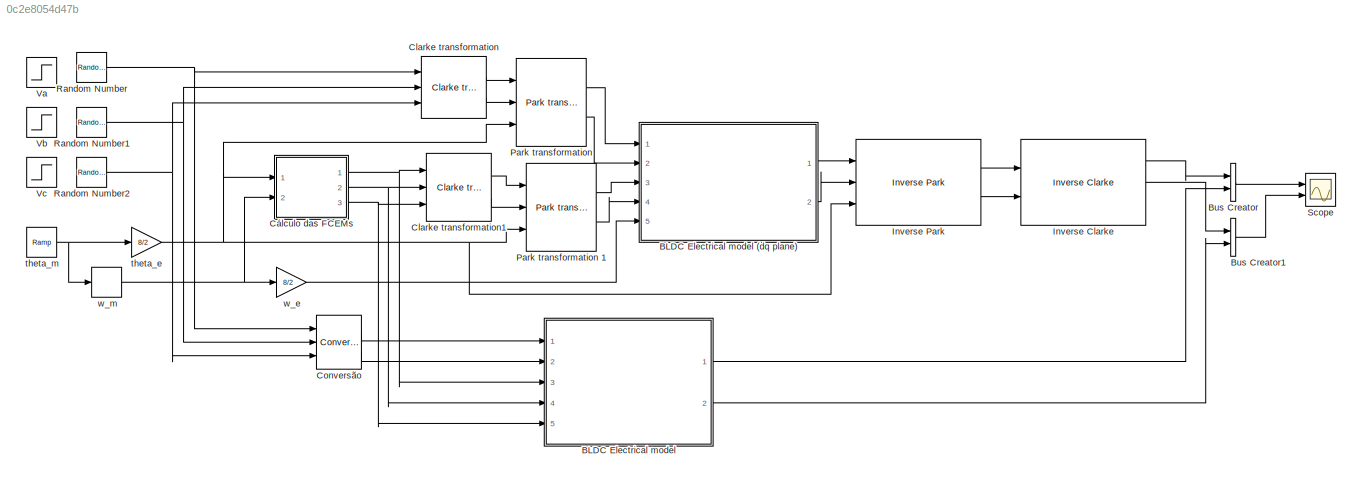
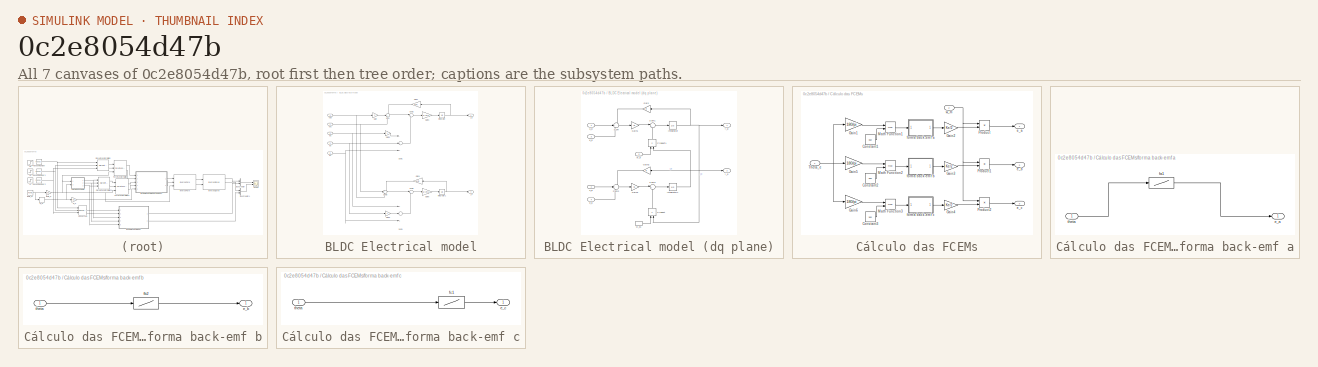
[diagram: thumbnail index - all 7 canvases of the model, root first then tree order]
MODEL slx_0c2e8054d47b
KIND model
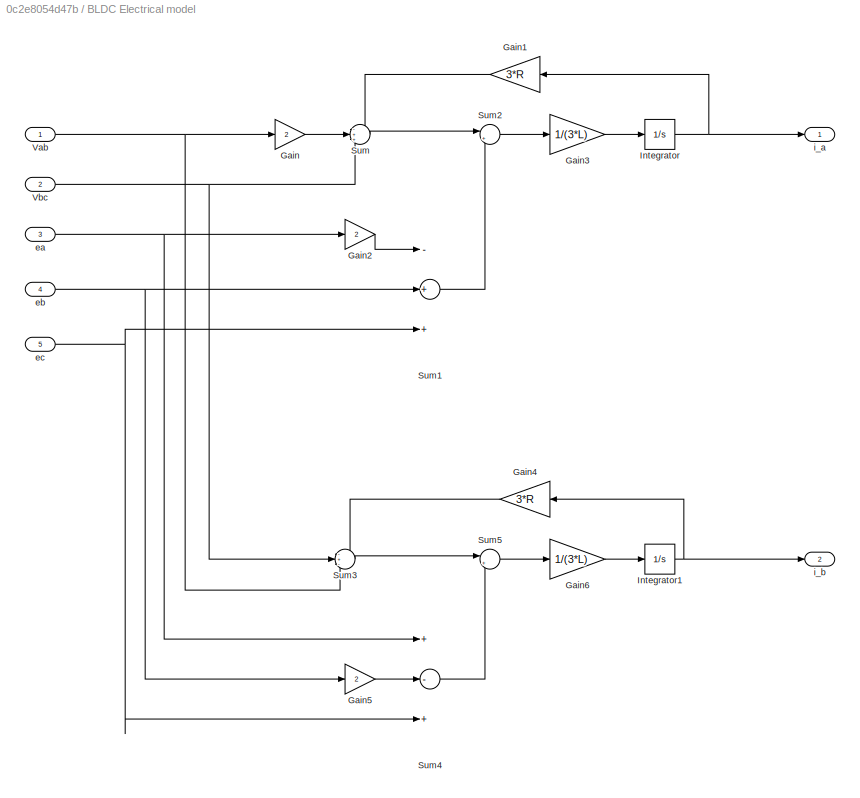
BLOCK [SubSystem] BLDC Electrical model
  FunctionWithSeparateData = off
  MaskHideContents = off
  MinAlgLoopOccurrences = off
  Opaque = off
  Ports = [5, 2]
  PropExecContextOutsideSubsystem = off
  RTWSystemCode = Auto
  RequestExecContextInheritance = off
BLOCK [SubSystem] BLDC Electrical model (dq plane)
  FunctionWithSeparateData = off
  MaskHideContents = off
  MinAlgLoopOccurrences = off
  Opaque = off
  Ports = [5, 2]
  PropExecContextOutsideSubsystem = off
  RTWSystemCode = Auto
  RequestExecContextInheritance = off
BLOCK [Gain] BLDC Electrical model (dq plane)/Gain
  Gain = R
  OutDataTypeStr = Inherit: Inherit via internal rule
  ParamDataTypeStr = Inherit: Inherit via internal rule
  SaturateOnIntegerOverflow = off
BLOCK [Gain] BLDC Electrical model (dq plane)/Gain1
  Gain = 1/L
  OutDataTypeStr = Inherit: Inherit via internal rule
  ParamDataTypeStr = Inherit: Inherit via internal rule
  SaturateOnIntegerOverflow = off
BLOCK [Gain] BLDC Electrical model (dq plane)/Gain2
  Gain = R
  OutDataTypeStr = Inherit: Inherit via internal rule
  ParamDataTypeStr = Inherit: Inherit via internal rule
  SaturateOnIntegerOverflow = off
BLOCK [Gain] BLDC Electrical model (dq plane)/Gain3
  Gain = 1/L
  OutDataTypeStr = Inherit: Inherit via internal rule
  ParamDataTypeStr = Inherit: Inherit via internal rule
  SaturateOnIntegerOverflow = off
BLOCK [Integrator] BLDC Electrical model (dq plane)/Integrator
  Ports = [1, 1]
BLOCK [Integrator] BLDC Electrical model (dq plane)/Integrator1
  Ports = [1, 1]
BLOCK [Product] BLDC Electrical model (dq plane)/Product
  InputSameDT = off
  OutDataTypeStr = Inherit: Inherit via internal rule
  Ports = [2, 1]
  SaturateOnIntegerOverflow = off
BLOCK [Product] BLDC Electrical model (dq plane)/Product1
  InputSameDT = off
  OutDataTypeStr = Inherit: Inherit via internal rule
  Ports = [2, 1]
  SaturateOnIntegerOverflow = off
BLOCK [Sum] BLDC Electrical model (dq plane)/Sum
  IconShape = round
  InputSameDT = off
  Inputs = -+-
  OutDataTypeStr = Inherit: Inherit via internal rule
  Ports = [3, 1]
  SaturateOnIntegerOverflow = off
BLOCK [Sum] BLDC Electrical model (dq plane)/Sum1
  IconShape = round
  InputSameDT = off
  Inputs = |++
  OutDataTypeStr = Inherit: Inherit via internal rule
  Ports = [2, 1]
  SaturateOnIntegerOverflow = off
BLOCK [Sum] BLDC Electrical model (dq plane)/Sum2
  IconShape = round
  InputSameDT = off
  Inputs = -+-
  OutDataTypeStr = Inherit: Inherit via internal rule
  Ports = [3, 1]
  SaturateOnIntegerOverflow = off
BLOCK [Sum] BLDC Electrical model (dq plane)/Sum3
  IconShape = round
  InputSameDT = off
  Inputs = |+-
  OutDataTypeStr = Inherit: Inherit via internal rule
  Ports = [2, 1]
  SaturateOnIntegerOverflow = off
BLOCK [Inport] BLDC Electrical model (dq plane)/e_d
  IconDisplay = Port number
  Port = 3
BLOCK [Inport] BLDC Electrical model (dq plane)/e_q
  IconDisplay = Port number
  Port = 4
BLOCK [Outport] BLDC Electrical model (dq plane)/i_d
  IconDisplay = Port number
BLOCK [Outport] BLDC Electrical model (dq plane)/i_q
  IconDisplay = Port number
  Port = 2
BLOCK [Inport] BLDC Electrical model (dq plane)/u_d
  IconDisplay = Port number
BLOCK [Inport] BLDC Electrical model (dq plane)/u_q
  IconDisplay = Port number
  Port = 2
BLOCK [Inport] BLDC Electrical model (dq plane)/w_e
  IconDisplay = Port number
  Port = 5
BLOCK [InportShadow] BLDC Electrical model (dq plane)/w_e1
  IconDisplay = Port number
  LatchByDelayingOutsideSignal = off
  LatchInputForFeedbackSignals = off
  Port = 5
BLOCK [Gain] BLDC Electrical model/Gain
  Gain = 2
  OutDataTypeStr = Inherit: Inherit via internal rule
  ParamDataTypeStr = Inherit: Inherit via internal rule
  SaturateOnIntegerOverflow = off
BLOCK [Gain] BLDC Electrical model/Gain1
  Gain = 3*R
  OutDataTypeStr = Inherit: Inherit via internal rule
  ParamDataTypeStr = Inherit: Inherit via internal rule
  SaturateOnIntegerOverflow = off
BLOCK [Gain] BLDC Electrical model/Gain2
  Gain = 2
  OutDataTypeStr = Inherit: Inherit via internal rule
  ParamDataTypeStr = Inherit: Inherit via internal rule
  SaturateOnIntegerOverflow = off
BLOCK [Gain] BLDC Electrical model/Gain3
  Gain = 1/(3*L)
  OutDataTypeStr = Inherit: Inherit via internal rule
  ParamDataTypeStr = Inherit: Inherit via internal rule
  SaturateOnIntegerOverflow = off
BLOCK [Gain] BLDC Electrical model/Gain4
  Gain = 3*R
  OutDataTypeStr = Inherit: Inherit via internal rule
  ParamDataTypeStr = Inherit: Inherit via internal rule
  SaturateOnIntegerOverflow = off
BLOCK [Gain] BLDC Electrical model/Gain5
  Gain = 2
  OutDataTypeStr = Inherit: Inherit via internal rule
  ParamDataTypeStr = Inherit: Inherit via internal rule
  SaturateOnIntegerOverflow = off
BLOCK [Gain] BLDC Electrical model/Gain6
  Gain = 1/(3*L)
  OutDataTypeStr = Inherit: Inherit via internal rule
  ParamDataTypeStr = Inherit: Inherit via internal rule
  SaturateOnIntegerOverflow = off
BLOCK [Integrator] BLDC Electrical model/Integrator
  Ports = [1, 1]
BLOCK [Integrator] BLDC Electrical model/Integrator1
  Ports = [1, 1]
BLOCK [Sum] BLDC Electrical model/Sum
  IconShape = round
  InputSameDT = off
  Inputs = -++
  OutDataTypeStr = Inherit: Inherit via internal rule
  Ports = [3, 1]
  SaturateOnIntegerOverflow = off
BLOCK [Sum] BLDC Electrical model/Sum1
  InputSameDT = off
  Inputs = -++
  OutDataTypeStr = Inherit: Inherit via internal rule
  Ports = [3, 1]
  SaturateOnIntegerOverflow = off
BLOCK [Sum] BLDC Electrical model/Sum2
  IconShape = round
  InputSameDT = off
  Inputs = |++
  OutDataTypeStr = Inherit: Inherit via internal rule
  Ports = [2, 1]
  SaturateOnIntegerOverflow = off
BLOCK [Sum] BLDC Electrical model/Sum3
  IconShape = round
  InputSameDT = off
  Inputs = -+-
  OutDataTypeStr = Inherit: Inherit via internal rule
  Ports = [3, 1]
  SaturateOnIntegerOverflow = off
BLOCK [Sum] BLDC Electrical model/Sum4
  InputSameDT = off
  Inputs = +-+
  OutDataTypeStr = Inherit: Inherit via internal rule
  Ports = [3, 1]
  SaturateOnIntegerOverflow = off
BLOCK [Sum] BLDC Electrical model/Sum5
  IconShape = round
  InputSameDT = off
  Inputs = |++
  OutDataTypeStr = Inherit: Inherit via internal rule
  Ports = [2, 1]
  SaturateOnIntegerOverflow = off
BLOCK [Inport] BLDC Electrical model/Vab
  IconDisplay = Port number
BLOCK [Inport] BLDC Electrical model/Vbc
  IconDisplay = Port number
  Port = 2
BLOCK [Inport] BLDC Electrical model/ea
  IconDisplay = Port number
  Port = 3
BLOCK [Inport] BLDC Electrical model/eb
  IconDisplay = Port number
  Port = 4
BLOCK [Inport] BLDC Electrical model/ec
  IconDisplay = Port number
  Port = 5
BLOCK [Outport] BLDC Electrical model/i_a
  IconDisplay = Port number
BLOCK [Outport] BLDC Electrical model/i_b
  IconDisplay = Port number
  Port = 2
BLOCK [BusCreator] Bus Creator
  DisplayOption = bar
  Inputs = 2
  Ports = [2, 1]
BLOCK [BusCreator] Bus Creator1
  DisplayOption = bar
  Inputs = 2
  Ports = [2, 1]
BLOCK [Reference] Clarke transformation  REF=Tools/Clarke transformation
  Ports = [3, 2]
  SourceBlock = Tools/Clarke transformation
  SourceType = SubSystem
BLOCK [Reference] Clarke transformation1  REF=Tools/Clarke transformation
  Ports = [3, 2]
  SourceBlock = Tools/Clarke transformation
  SourceType = SubSystem
BLOCK [Reference] Conversão  REF=BLDC/Conversão
  Ports = [3, 2]
  SourceBlock = BLDC/Conversão
  SourceType = SubSystem
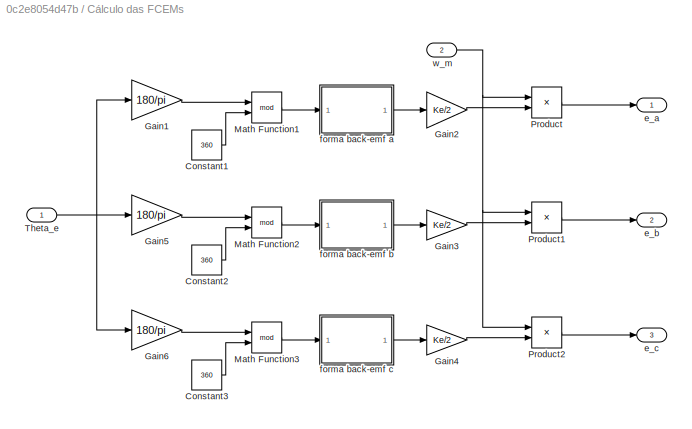
BLOCK [SubSystem] Cálculo das FCEMs
  FunctionWithSeparateData = off
  MaskHideContents = off
  MinAlgLoopOccurrences = off
  Opaque = off
  Ports = [2, 3]
  PropExecContextOutsideSubsystem = off
  RTWSystemCode = Auto
  RequestExecContextInheritance = off
BLOCK [Constant] Cálculo das FCEMs/Constant1
  Value = 360
BLOCK [Constant] Cálculo das FCEMs/Constant2
  Value = 360
BLOCK [Constant] Cálculo das FCEMs/Constant3
  Value = 360
BLOCK [Gain] Cálculo das FCEMs/Gain1
  Gain = 180/pi
  OutDataTypeStr = Inherit: Inherit via internal rule
  ParamDataTypeStr = Inherit: Inherit via internal rule
  SaturateOnIntegerOverflow = off
BLOCK [Gain] Cálculo das FCEMs/Gain2
  Gain = Ke/2
  OutDataTypeStr = Inherit: Inherit via internal rule
  ParamDataTypeStr = Inherit: Inherit via internal rule
  SaturateOnIntegerOverflow = off
BLOCK [Gain] Cálculo das FCEMs/Gain3
  Gain = Ke/2
  OutDataTypeStr = Inherit: Inherit via internal rule
  ParamDataTypeStr = Inherit: Inherit via internal rule
  SaturateOnIntegerOverflow = off
BLOCK [Gain] Cálculo das FCEMs/Gain4
  Gain = Ke/2
  OutDataTypeStr = Inherit: Inherit via internal rule
  ParamDataTypeStr = Inherit: Inherit via internal rule
  SaturateOnIntegerOverflow = off
BLOCK [Gain] Cálculo das FCEMs/Gain5
  Gain = 180/pi
  OutDataTypeStr = Inherit: Inherit via internal rule
  ParamDataTypeStr = Inherit: Inherit via internal rule
  SaturateOnIntegerOverflow = off
BLOCK [Gain] Cálculo das FCEMs/Gain6
  Gain = 180/pi
  OutDataTypeStr = Inherit: Inherit via internal rule
  ParamDataTypeStr = Inherit: Inherit via internal rule
  SaturateOnIntegerOverflow = off
BLOCK [Math] Cálculo das FCEMs/Math Function1
  Operator = mod
  Ports = [2, 1]
BLOCK [Math] Cálculo das FCEMs/Math Function2
  Operator = mod
  Ports = [2, 1]
BLOCK [Math] Cálculo das FCEMs/Math Function3
  Operator = mod
  Ports = [2, 1]
BLOCK [Product] Cálculo das FCEMs/Product
  InputSameDT = off
  OutDataTypeStr = Inherit: Inherit via internal rule
  Ports = [2, 1]
  SaturateOnIntegerOverflow = off
BLOCK [Product] Cálculo das FCEMs/Product1
  InputSameDT = off
  OutDataTypeStr = Inherit: Inherit via internal rule
  Ports = [2, 1]
  SaturateOnIntegerOverflow = off
BLOCK [Product] Cálculo das FCEMs/Product2
  InputSameDT = off
  OutDataTypeStr = Inherit: Inherit via internal rule
  Ports = [2, 1]
  SaturateOnIntegerOverflow = off
BLOCK [Inport] Cálculo das FCEMs/Theta_e
  IconDisplay = Port number
BLOCK [Outport] Cálculo das FCEMs/e_a
  IconDisplay = Port number
BLOCK [Outport] Cálculo das FCEMs/e_b
  IconDisplay = Port number
  Port = 2
BLOCK [Outport] Cálculo das FCEMs/e_c
  IconDisplay = Port number
  Port = 3
BLOCK [SubSystem] Cálculo das FCEMs/forma back-emf a
  FunctionWithSeparateData = off
  MaskHideContents = off
  MinAlgLoopOccurrences = off
  Opaque = off
  Ports = [1, 1]
  PropExecContextOutsideSubsystem = off
  RTWSystemCode = Auto
  RequestExecContextInheritance = off
BLOCK [Outport] Cálculo das FCEMs/forma back-emf a/e_a
  IconDisplay = Port number
BLOCK [Lookup] Cálculo das FCEMs/forma back-emf a/fa1
  InputValues = [0 30 60 90 120 150 180 210 240 270 300 330 360]
  SaturateOnIntegerOverflow = off
  Table = [ 1 1 1 0 -1 -1 -1 -1 -1 0 1 1 1]
BLOCK [Inport] Cálculo das FCEMs/forma back-emf a/theta
  IconDisplay = Port number
BLOCK [SubSystem] Cálculo das FCEMs/forma back-emf b
  FunctionWithSeparateData = off
  MaskHideContents = off
  MinAlgLoopOccurrences = off
  Opaque = off
  Ports = [1, 1]
  PropExecContextOutsideSubsystem = off
  RTWSystemCode = Auto
  RequestExecContextInheritance = off
BLOCK [Outport] Cálculo das FCEMs/forma back-emf b/e_b
  IconDisplay = Port number
BLOCK [Lookup] Cálculo das FCEMs/forma back-emf b/fb2
  InputValues = [0 30 60 90 120 150 180 210 240 270 300 330 360]
  SaturateOnIntegerOverflow = off
  Table = [-1 0 1 1 1 1 1 0 -1 -1 -1 -1 -1]
BLOCK [Inport] Cálculo das FCEMs/forma back-emf b/theta
  IconDisplay = Port number
BLOCK [SubSystem] Cálculo das FCEMs/forma back-emf c
  FunctionWithSeparateData = off
  MaskHideContents = off
  MinAlgLoopOccurrences = off
  Opaque = off
  Ports = [1, 1]
  PropExecContextOutsideSubsystem = off
  RTWSystemCode = Auto
  RequestExecContextInheritance = off
BLOCK [Outport] Cálculo das FCEMs/forma back-emf c/e_c
  IconDisplay = Port number
BLOCK [Lookup] Cálculo das FCEMs/forma back-emf c/fc1
  InputValues = [0 30 60 90 120 150 180 210 240 270 300 330 360]
  SaturateOnIntegerOverflow = off
  Table = [-1 -1 -1 -1 -1 0 1 1 1 1 1 0 -1]
BLOCK [Inport] Cálculo das FCEMs/forma back-emf c/theta
  IconDisplay = Port number
BLOCK [Inport] Cálculo das FCEMs/w_m
  IconDisplay = Port number
  Port = 2
BLOCK [Reference] Inverse Clarke  REF=Tools/Inverse Clarke
  Ports = [2, 3]
  SourceBlock = Tools/Inverse Clarke
  SourceType = SubSystem
BLOCK [Reference] Inverse Park  REF=Tools/Inverse Park
  Ports = [3, 2]
  SourceBlock = Tools/Inverse Park
  SourceType = SubSystem
BLOCK [Reference] Park transformation   REF=Tools/Park transformation 
  Ports = [3, 2]
  SourceBlock = Tools/Park transformation
  SourceType = SubSystem
BLOCK [Reference] Park transformation 1  REF=Tools/Park transformation 
  Ports = [3, 2]
  SourceBlock = Tools/Park transformation
  SourceType = SubSystem
BLOCK [RandomNumber] Random Number
  SampleTime = 1
  Variance = 1000
BLOCK [RandomNumber] Random Number1
  SampleTime = 1
  Seed = 1
  Variance = 1000
BLOCK [RandomNumber] Random Number2
  SampleTime = 1
  Seed = 2
  Variance = 1000
BLOCK [Scope] Scope
  DataFormat = StructureWithTime
  Floating = off
  LimitDataPoints = off
  NumInputPorts = 2
  Ports = [2]
  SampleTime = 0
  ShowLegends = off
  YMax = 5~5
  YMin = -5~-5
  ZoomMode = xonly
BLOCK [Step] Va
  After = 6
  SampleTime = 0
  Time = 0
BLOCK [Step] Vb
  After = 6
  SampleTime = 0
  Time = 0
BLOCK [Step] Vc
  After = 6
  SampleTime = 0
  Time = 0
BLOCK [Gain] theta_e
  Gain = 8/2
  OutDataTypeStr = Inherit: Inherit via internal rule
  ParamDataTypeStr = Inherit: Inherit via internal rule
  SaturateOnIntegerOverflow = off
BLOCK [Reference] theta_m  REF=simulink/Sources/Ramp
  Ports = [0, 1]
  SourceBlock = simulink/Sources/Ramp
  SourceType = Ramp
  VectorParams1D = on
  X0 = 0
  slope = 300
  start = 0
BLOCK [Gain] w_e
  Gain = 8/2
  OutDataTypeStr = Inherit: Inherit via internal rule
  ParamDataTypeStr = Inherit: Inherit via internal rule
  SaturateOnIntegerOverflow = off
BLOCK [Derivative] w_m
LINE BLDC Electrical model (dq plane)/Gain1:1 -> BLDC Electrical model (dq plane)/Sum1:1
LINE BLDC Electrical model (dq plane)/Gain2:1 -> BLDC Electrical model (dq plane)/Sum2:1
LINE BLDC Electrical model (dq plane)/Gain3:1 -> BLDC Electrical model (dq plane)/Sum3:1
LINE BLDC Electrical model (dq plane)/Gain:1 -> BLDC Electrical model (dq plane)/Sum:1
NET BLDC Electrical model (dq plane)/Integrator1:1 -> BLDC Electrical model (dq plane)/Gain2:1, BLDC Electrical model (dq plane)/Product1:2, BLDC Electrical model (dq plane)/i_q:1
NET BLDC Electrical model (dq plane)/Integrator:1 -> BLDC Electrical model (dq plane)/Gain:1, BLDC Electrical model (dq plane)/Product:2, BLDC Electrical model (dq plane)/i_d:1
LINE BLDC Electrical model (dq plane)/Product1:1 -> BLDC Electrical model (dq plane)/Sum1:2
LINE BLDC Electrical model (dq plane)/Product:1 -> BLDC Electrical model (dq plane)/Sum3:2
LINE BLDC Electrical model (dq plane)/Sum1:1 -> BLDC Electrical model (dq plane)/Integrator:1
LINE BLDC Electrical model (dq plane)/Sum2:1 -> BLDC Electrical model (dq plane)/Gain3:1
LINE BLDC Electrical model (dq plane)/Sum3:1 -> BLDC Electrical model (dq plane)/Integrator1:1
LINE BLDC Electrical model (dq plane)/Sum:1 -> BLDC Electrical model (dq plane)/Gain1:1
LINE BLDC Electrical model (dq plane)/e_d:1 -> BLDC Electrical model (dq plane)/Sum:3
LINE BLDC Electrical model (dq plane)/e_q:1 -> BLDC Electrical model (dq plane)/Sum2:3
LINE BLDC Electrical model (dq plane)/u_d:1 -> BLDC Electrical model (dq plane)/Sum:2
LINE BLDC Electrical model (dq plane)/u_q:1 -> BLDC Electrical model (dq plane)/Sum2:2
LINE BLDC Electrical model (dq plane)/w_e1:1 -> BLDC Electrical model (dq plane)/Product:1
LINE BLDC Electrical model (dq plane)/w_e:1 -> BLDC Electrical model (dq plane)/Product1:1
LINE BLDC Electrical model (dq plane):1 -> Inverse Park:1
LINE BLDC Electrical model (dq plane):2 -> Inverse Park:2
LINE BLDC Electrical model/Gain1:1 -> BLDC Electrical model/Sum:1
LINE BLDC Electrical model/Gain2:1 -> BLDC Electrical model/Sum1:1
LINE BLDC Electrical model/Gain3:1 -> BLDC Electrical model/Integrator:1
LINE BLDC Electrical model/Gain4:1 -> BLDC Electrical model/Sum3:1
LINE BLDC Electrical model/Gain5:1 -> BLDC Electrical model/Sum4:2
LINE BLDC Electrical model/Gain6:1 -> BLDC Electrical model/Integrator1:1
LINE BLDC Electrical model/Gain:1 -> BLDC Electrical model/Sum:2
NET BLDC Electrical model/Integrator1:1 -> BLDC Electrical model/Gain4:1, BLDC Electrical model/i_b:1
NET BLDC Electrical model/Integrator:1 -> BLDC Electrical model/Gain1:1, BLDC Electrical model/i_a:1
LINE BLDC Electrical model/Sum1:1 -> BLDC Electrical model/Sum2:2
LINE BLDC Electrical model/Sum2:1 -> BLDC Electrical model/Gain3:1
LINE BLDC Electrical model/Sum3:1 -> BLDC Electrical model/Sum5:1
LINE BLDC Electrical model/Sum4:1 -> BLDC Electrical model/Sum5:2
LINE BLDC Electrical model/Sum5:1 -> BLDC Electrical model/Gain6:1
LINE BLDC Electrical model/Sum:1 -> BLDC Electrical model/Sum2:1
NET BLDC Electrical model/Vab:1 -> BLDC Electrical model/Gain:1, BLDC Electrical model/Sum3:3
NET BLDC Electrical model/Vbc:1 -> BLDC Electrical model/Sum3:2, BLDC Electrical model/Sum:3
NET BLDC Electrical model/ea:1 -> BLDC Electrical model/Gain2:1, BLDC Electrical model/Sum4:1
NET BLDC Electrical model/eb:1 -> BLDC Electrical model/Gain5:1, BLDC Electrical model/Sum1:2
NET BLDC Electrical model/ec:1 -> BLDC Electrical model/Sum1:3, BLDC Electrical model/Sum4:3
LINE BLDC Electrical model:1 -> Bus Creator:2
LINE BLDC Electrical model:2 -> Bus Creator1:2
LINE Bus Creator1:1 -> Scope:2
LINE Bus Creator:1 -> Scope:1
LINE Clarke transformation1:1 -> Park transformation 1:1
LINE Clarke transformation1:2 -> Park transformation 1:2
LINE Clarke transformation:1 -> Park transformation :1
LINE Clarke transformation:2 -> Park transformation :2
LINE Conversão:1 -> BLDC Electrical model:1
LINE Conversão:2 -> BLDC Electrical model:2
LINE Cálculo das FCEMs/Constant1:1 -> Cálculo das FCEMs/Math Function1:2
LINE Cálculo das FCEMs/Constant2:1 -> Cálculo das FCEMs/Math Function2:2
LINE Cálculo das FCEMs/Constant3:1 -> Cálculo das FCEMs/Math Function3:2
LINE Cálculo das FCEMs/Gain1:1 -> Cálculo das FCEMs/Math Function1:1
LINE Cálculo das FCEMs/Gain2:1 -> Cálculo das FCEMs/Product:2
LINE Cálculo das FCEMs/Gain3:1 -> Cálculo das FCEMs/Product1:2
LINE Cálculo das FCEMs/Gain4:1 -> Cálculo das FCEMs/Product2:2
LINE Cálculo das FCEMs/Gain5:1 -> Cálculo das FCEMs/Math Function2:1
LINE Cálculo das FCEMs/Gain6:1 -> Cálculo das FCEMs/Math Function3:1
LINE Cálculo das FCEMs/Math Function1:1 -> Cálculo das FCEMs/forma back-emf a:1
LINE Cálculo das FCEMs/Math Function2:1 -> Cálculo das FCEMs/forma back-emf b:1
LINE Cálculo das FCEMs/Math Function3:1 -> Cálculo das FCEMs/forma back-emf c:1
LINE Cálculo das FCEMs/Product1:1 -> Cálculo das FCEMs/e_b:1
LINE Cálculo das FCEMs/Product2:1 -> Cálculo das FCEMs/e_c:1
LINE Cálculo das FCEMs/Product:1 -> Cálculo das FCEMs/e_a:1
NET Cálculo das FCEMs/Theta_e:1 -> Cálculo das FCEMs/Gain1:1, Cálculo das FCEMs/Gain5:1, Cálculo das FCEMs/Gain6:1
LINE Cálculo das FCEMs/forma back-emf a/fa1:1 -> Cálculo das FCEMs/forma back-emf a/e_a:1
LINE Cálculo das FCEMs/forma back-emf a/theta:1 -> Cálculo das FCEMs/forma back-emf a/fa1:1
LINE Cálculo das FCEMs/forma back-emf a:1 -> Cálculo das FCEMs/Gain2:1
LINE Cálculo das FCEMs/forma back-emf b/fb2:1 -> Cálculo das FCEMs/forma back-emf b/e_b:1
LINE Cálculo das FCEMs/forma back-emf b/theta:1 -> Cálculo das FCEMs/forma back-emf b/fb2:1
LINE Cálculo das FCEMs/forma back-emf b:1 -> Cálculo das FCEMs/Gain3:1
LINE Cálculo das FCEMs/forma back-emf c/fc1:1 -> Cálculo das FCEMs/forma back-emf c/e_c:1
LINE Cálculo das FCEMs/forma back-emf c/theta:1 -> Cálculo das FCEMs/forma back-emf c/fc1:1
LINE Cálculo das FCEMs/forma back-emf c:1 -> Cálculo das FCEMs/Gain4:1
NET Cálculo das FCEMs/w_m:1 -> Cálculo das FCEMs/Product1:1, Cálculo das FCEMs/Product2:1, Cálculo das FCEMs/Product:1
NET Cálculo das FCEMs:1 -> BLDC Electrical model:3, Clarke transformation1:1
NET Cálculo das FCEMs:2 -> BLDC Electrical model:4, Clarke transformation1:2
NET Cálculo das FCEMs:3 -> BLDC Electrical model:5, Clarke transformation1:3
LINE Inverse Clarke:1 -> Bus Creator:1
LINE Inverse Clarke:2 -> Bus Creator1:1
LINE Inverse Park:1 -> Inverse Clarke:1
LINE Inverse Park:2 -> Inverse Clarke:2
LINE Park transformation 1:1 -> BLDC Electrical model (dq plane):3
LINE Park transformation 1:2 -> BLDC Electrical model (dq plane):4
LINE Park transformation :1 -> BLDC Electrical model (dq plane):1
LINE Park transformation :2 -> BLDC Electrical model (dq plane):2
NET Random Number1:1 -> Clarke transformation:2, Conversão:2
NET Random Number2:1 -> Clarke transformation:3, Conversão:3
NET Random Number:1 -> Clarke transformation:1, Conversão:1
NET theta_e:1 -> Cálculo das FCEMs:1, Inverse Park:3, Park transformation 1:3, Park transformation :3
NET theta_m:1 -> theta_e:1, w_m:1
LINE w_e:1 -> BLDC Electrical model (dq plane):5
NET w_m:1 -> Cálculo das FCEMs:2, w_e:1
note: NET lines group one-source signal fan-out (src -> all destinations, sorted); 1:1 wires keep LINE
